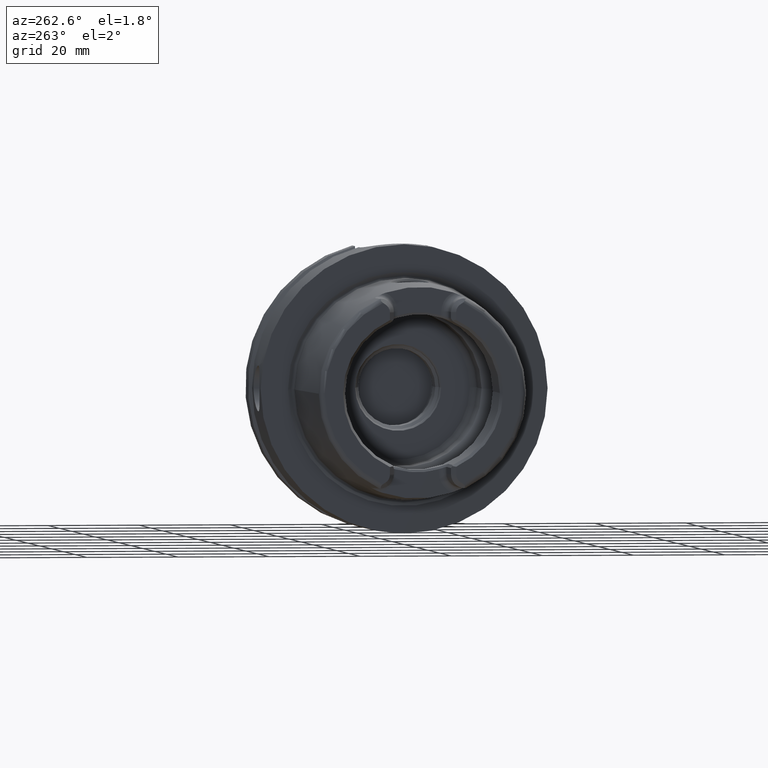
[diagram: clean part render]
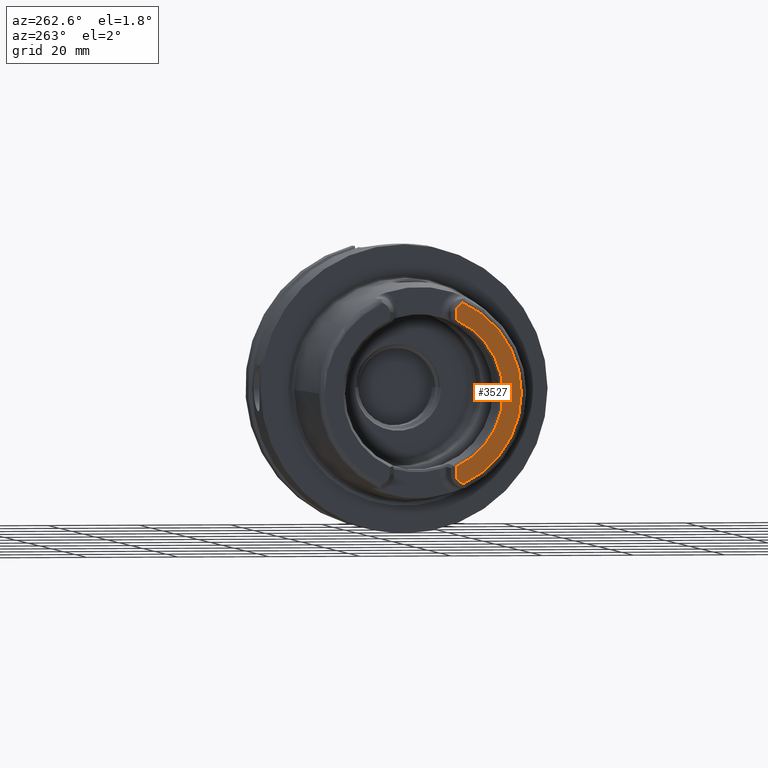
[diagram: same view with one face highlighted and labeled with its STEP entity id]
A machine part, auxiliary view. The second image highlights one B-rep face of the part: STEP entity #3527.
In plain terms, the highlighted planar face has unit normal (1, 0, 0).
Its self-contained STEP definition (entity closure, byte-faithful):
#231=CARTESIAN_POINT('',(-3.2E1,0.E0,0.E0));
#232=DIRECTION('',(-1.E0,0.E0,0.E0));
#233=DIRECTION('',(0.E0,-4.056746540583E-1,-9.140175463604E-1));
#234=AXIS2_PLACEMENT_3D('',#231,#232,#233);
#315=DIRECTION('',(0.E0,0.E0,-1.E0));
#316=VECTOR('',#315,1.666552168805E0);
#317=CARTESIAN_POINT('',(-3.2E1,-7.27E0,-1.600344783120E1));
#318=LINE('',#317,#316);
#319=DIRECTION('',(0.E0,0.E0,1.E0));
#320=VECTOR('',#319,1.666552168805E0);
#321=CARTESIAN_POINT('',(-3.2E1,-7.27E0,1.600344783120E1));
#322=LINE('',#321,#320);
#323=CARTESIAN_POINT('',(-3.2E1,-9.27E0,1.767E1));
#324=DIRECTION('',(1.E0,0.E0,0.E0));
#325=DIRECTION('',(0.E0,1.E0,1.065814103640E-14));
#326=AXIS2_PLACEMENT_3D('',#323,#324,#325);
#328=DIRECTION('',(0.E0,8.373245684230E-1,-5.467061067112E-1));
#329=VECTOR('',#328,6.882400885957E-1);
#330=CARTESIAN_POINT('',(-3.2E1,-8.752868121732E0,1.972091419616E1));
#331=LINE('',#330,#329);
#332=DIRECTION('',(0.E0,8.373245684230E-1,5.467061067112E-1));
#333=VECTOR('',#332,6.882400885957E-1);
#334=CARTESIAN_POINT('',(-3.2E1,-8.752868121732E0,-1.972091419616E1));
#335=LINE('',#334,#333);
#336=CARTESIAN_POINT('',(-3.2E1,-9.27E0,-1.767E1));
#337=DIRECTION('',(-1.E0,0.E0,0.E0));
#338=DIRECTION('',(0.E0,1.E0,0.E0));
#339=AXIS2_PLACEMENT_3D('',#336,#337,#338);
#410=CARTESIAN_POINT('',(-3.2E1,0.E0,0.E0));
#411=DIRECTION('',(1.E0,0.E0,0.E0));
#412=DIRECTION('',(0.E0,-4.136004510727E-1,9.104584926686E-1));
#413=AXIS2_PLACEMENT_3D('',#410,#411,#412);
#2890=CARTESIAN_POINT('',(-3.2E1,-7.27E0,1.600344783120E1));
#2891=CARTESIAN_POINT('',(-3.2E1,-7.27E0,1.767E1));
#2892=VERTEX_POINT('',#2890);
#2893=VERTEX_POINT('',#2891);
#2894=CARTESIAN_POINT('',(-3.2E1,-8.176587786578E0,1.934464913685E1));
#2895=VERTEX_POINT('',#2894);
#2896=CARTESIAN_POINT('',(-3.2E1,-8.752868121732E0,1.972091419616E1));
#2897=VERTEX_POINT('',#2896);
#2987=CARTESIAN_POINT('',(-3.2E1,-7.27E0,-1.600344783120E1));
#2988=CARTESIAN_POINT('',(-3.2E1,-7.27E0,-1.767E1));
#2989=VERTEX_POINT('',#2987);
#2990=VERTEX_POINT('',#2988);
#2991=CARTESIAN_POINT('',(-3.2E1,-8.176587786578E0,-1.934464913685E1));
#2992=VERTEX_POINT('',#2991);
#2993=CARTESIAN_POINT('',(-3.2E1,-8.752868121732E0,-1.972091419616E1));
#2994=VERTEX_POINT('',#2993);
#3505=CARTESIAN_POINT('',(-3.2E1,0.E0,0.E0));
#3506=DIRECTION('',(1.E0,0.E0,0.E0));
#3507=DIRECTION('',(0.E0,-1.E0,0.E0));
#3508=AXIS2_PLACEMENT_3D('',#3505,#3506,#3507);
#3509=PLANE('',#3508);
#3511=ORIENTED_EDGE('',*,*,#3510,.F.);
#3513=ORIENTED_EDGE('',*,*,#3512,.F.);
#3515=ORIENTED_EDGE('',*,*,#3514,.T.);
#3517=ORIENTED_EDGE('',*,*,#3516,.T.);
#3519=ORIENTED_EDGE('',*,*,#3518,.F.);
#3520=ORIENTED_EDGE('',*,*,#3452,.F.);
#3522=ORIENTED_EDGE('',*,*,#3521,.T.);
#3524=ORIENTED_EDGE('',*,*,#3523,.F.);
#3525=EDGE_LOOP('',(#3511,#3513,#3515,#3517,#3519,#3520,#3522,#3524));
#3526=FACE_OUTER_BOUND('',#3525,.F.);
#3527=ADVANCED_FACE('',(#3526),#3509,.F.);
#235=CIRCLE('',#234,2.157607835286E1);
#327=CIRCLE('',#326,2.E0);
#340=CIRCLE('',#339,2.E0);
#414=CIRCLE('',#413,1.757735026919E1);
#3452=EDGE_CURVE('',#2994,#2897,#235,.T.);
#3510=EDGE_CURVE('',#2989,#2990,#318,.T.);
#3512=EDGE_CURVE('',#2892,#2989,#414,.T.);
#3514=EDGE_CURVE('',#2892,#2893,#322,.T.);
#3516=EDGE_CURVE('',#2893,#2895,#327,.T.);
#3518=EDGE_CURVE('',#2897,#2895,#331,.T.);
#3521=EDGE_CURVE('',#2994,#2992,#335,.T.);
#3523=EDGE_CURVE('',#2990,#2992,#340,.T.);